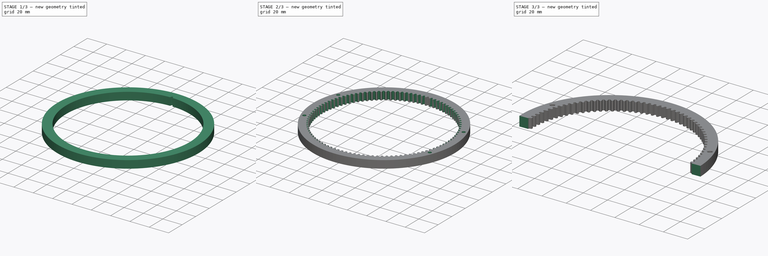
[diagram: build sequence overview — one tinted view per stage of 3, left to right]
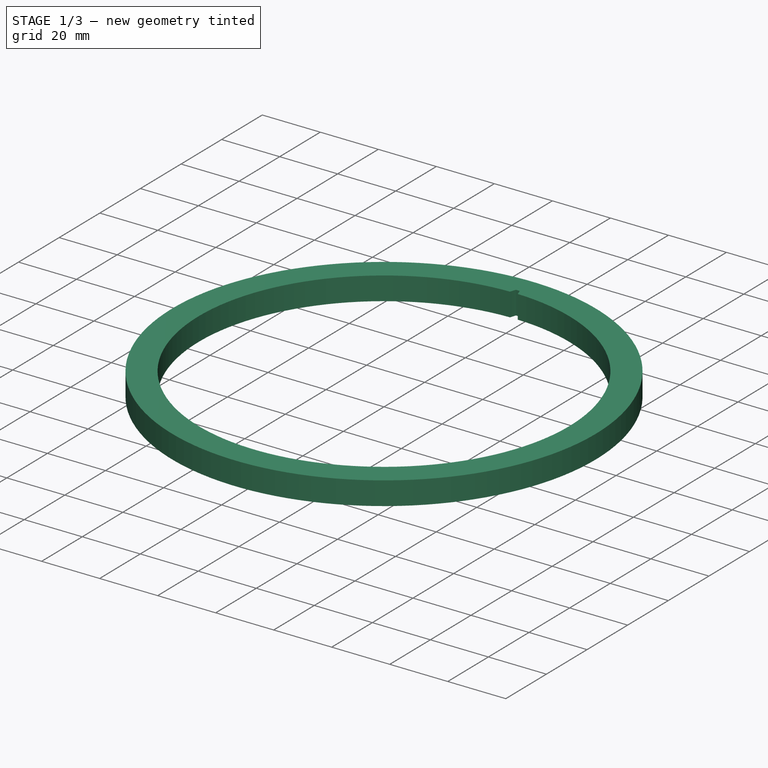
[diagram: stage 1 of 3 — iso view after this stage's code; geometry added in this stage tinted green]
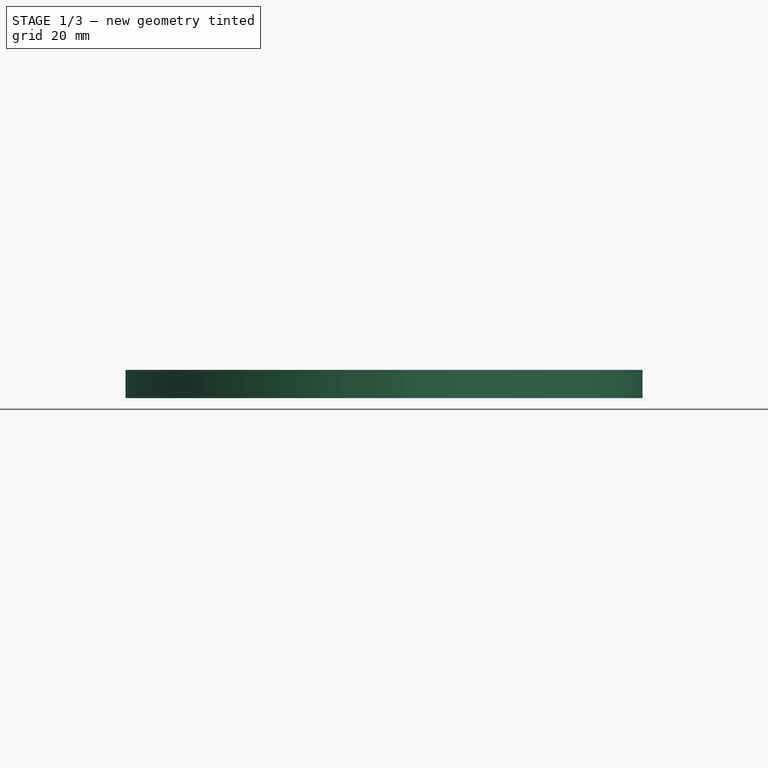
[diagram: stage 1 of 3 — front view after this stage's code; geometry added in this stage tinted green]
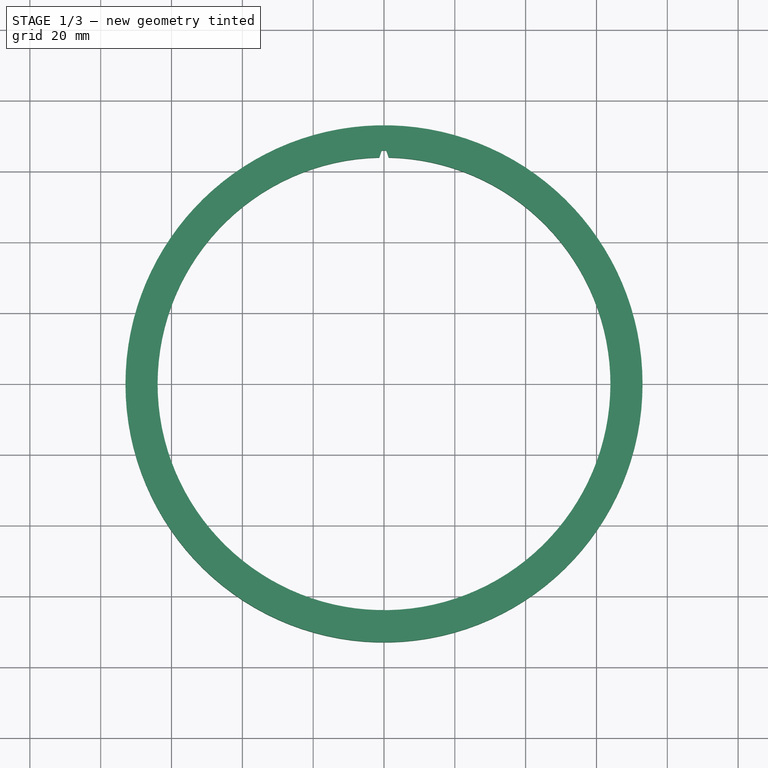
[diagram: stage 1 of 3 — top view after this stage's code; geometry added in this stage tinted green]
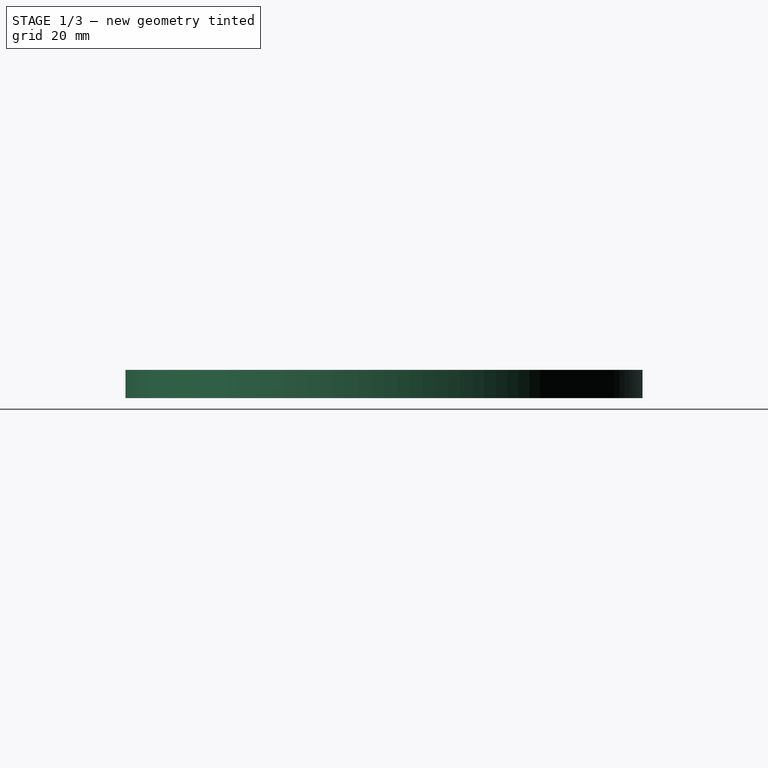
[diagram: stage 1 of 3 — right view after this stage's code; geometry added in this stage tinted green]
FCSTD DOCUMENT  (FreeCAD 0.15R4671 (Git))
Label: outer_gear
License: All rights reserved
LicenseURL: http://en.wikipedia.org/wiki/All_rights_reserved
objects: Sketcher::SketchObject×4, PartDesign::Pocket×3, PartDesign::PolarPattern×2, PartDesign::Pad×1, PartDesign::Chamfer×1
note: 15 computed .brp shape members not serialized (recipe doc carries the construction recipe); baked Part::Feature solids carry a one-line shape summary decoded from their .brp

FEATURE [Sketcher::SketchObject] Sketch001
  sketch-geometry (2):
    g0: Circle CenterX=0 CenterY=0 CenterZ=0 NormalX=0 NormalY=0 NormalZ=1 Radius=63.932
    g1: Circle CenterX=0 CenterY=0 CenterZ=0 NormalX=0 NormalY=0 NormalZ=1 Radius=73
  constraints (4):
    c: Coincident(g0,g-1)
    c: Radius(g0) = 63.932
    c: Coincident(g1,g-1)
    c: Radius(g1) = 73
FEATURE [PartDesign::Pad] Pad
  Length = 8
  Length2 = 100
  Sketch = -> Sketch001
  Type = 0
FEATURE [Sketcher::SketchObject] Sketch
  Placement = pos=(0,0,8) rot=(0,0,1;0rad)
  Support = -> Pad [Face4]
  sketch-geometry (8):
    g0: LineSegment [constr] StartX=0 StartY=0 StartZ=0 EndX=0 EndY=65.8918 EndZ=0
    g1: Circle [constr] CenterX=0 CenterY=0 CenterZ=0 NormalX=0 NormalY=0 NormalZ=1 Radius=63.932
    g2: LineSegment StartX=-0.641475 StartY=65.8918 StartZ=0 EndX=0.641475 EndY=65.8918 EndZ=0
    g3: ArcOfCircle CenterX=20.9902 CenterY=57.2713 CenterZ=0 NormalX=0 NormalY=0 NormalZ=1 Radius=23.2861 StartAngle=2.76237 EndAngle=2.85212
    g4: ArcOfCircle CenterX=-20.9902 CenterY=57.2713 CenterZ=0 NormalX=0 NormalY=0 NormalZ=1 Radius=23.2861 StartAngle=0.289471 EndAngle=0.379222
    g5: LineSegment [constr] StartX=-1.32706 StartY=63.9182 StartZ=0 EndX=1.32706 EndY=63.9182 EndZ=0
    g6: ArcOfCircle CenterX=0 CenterY=63.523 CenterZ=0 NormalX=0 NormalY=0 NormalZ=1 Radius=1.38467 StartAngle=2.85213 EndAngle=6.57265
    g7: LineSegment [constr] StartX=-1.32706 StartY=63.9182 StartZ=0 EndX=0.641475 EndY=65.8918 EndZ=0
  constraints (22):
    c: Coincident(g1,g0)
    c: Radius(g1) = 63.932
    c: Symmetric(g2,g2,g0)
    c: PointOnObject(g0,g2)
    c: Distance(g2) = 1.28295
    c: Coincident(g3,g2)
    c: PointOnObject(g3,g1)
    c: Coincident(g4,g2)
    c: Symmetric(g3,g4,g0)
    c: Equal(g4,g3)
    c: Coincident(g5,g3)
    c: Coincident(g5,g4)
    c: Distance(g5) = 2.65412
    c: Coincident(g6,g3)
    c: Coincident(g6,g4)
    c: Tangent(g3,g6)
    c: Radius(g3) = 23.2861
    c: Coincident(g7,g3)
    c: Coincident(g7,g2)
    c: Distance(g7) = 2.78747
    c: Vertical(g0)
    c: Coincident(g-1,g0)
FEATURE [PartDesign::Pocket] Pocket
  Length = 5
  Sketch = -> Sketch
  Type = 1
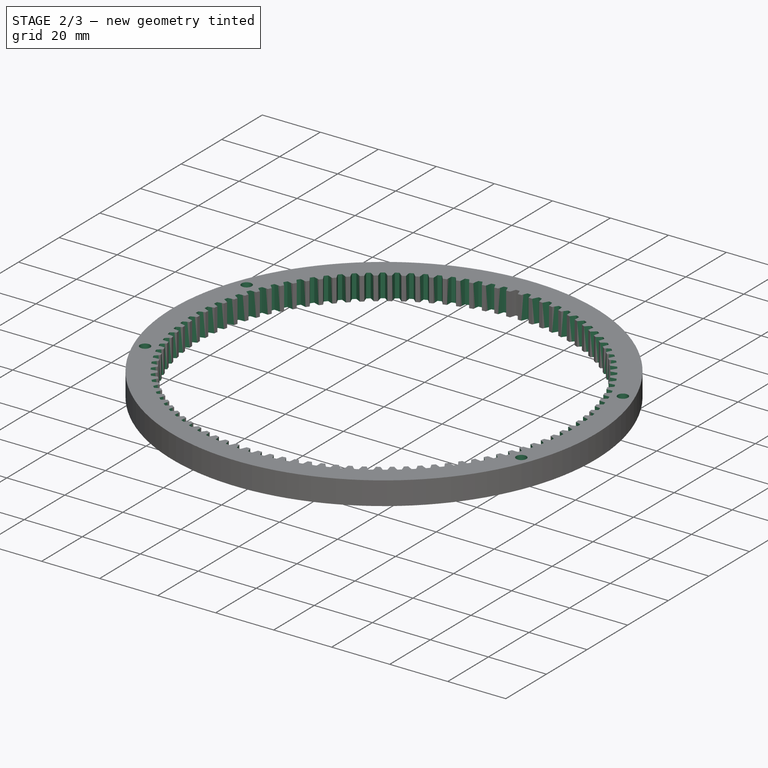
[diagram: stage 2 of 3 — iso view after this stage's code; geometry added in this stage tinted green]
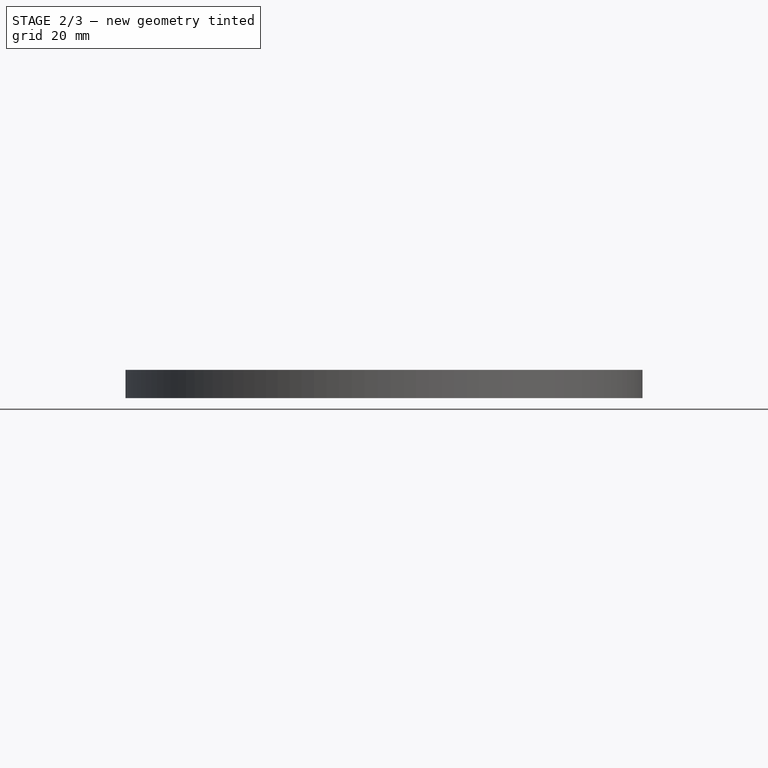
[diagram: stage 2 of 3 — front view after this stage's code; geometry added in this stage tinted green]
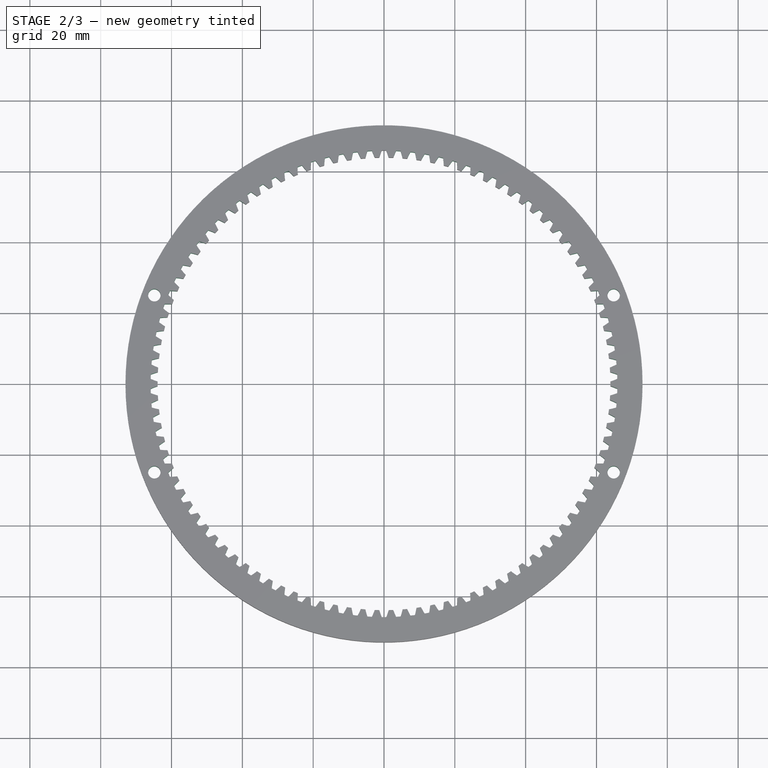
[diagram: stage 2 of 3 — top view after this stage's code; geometry added in this stage tinted green]
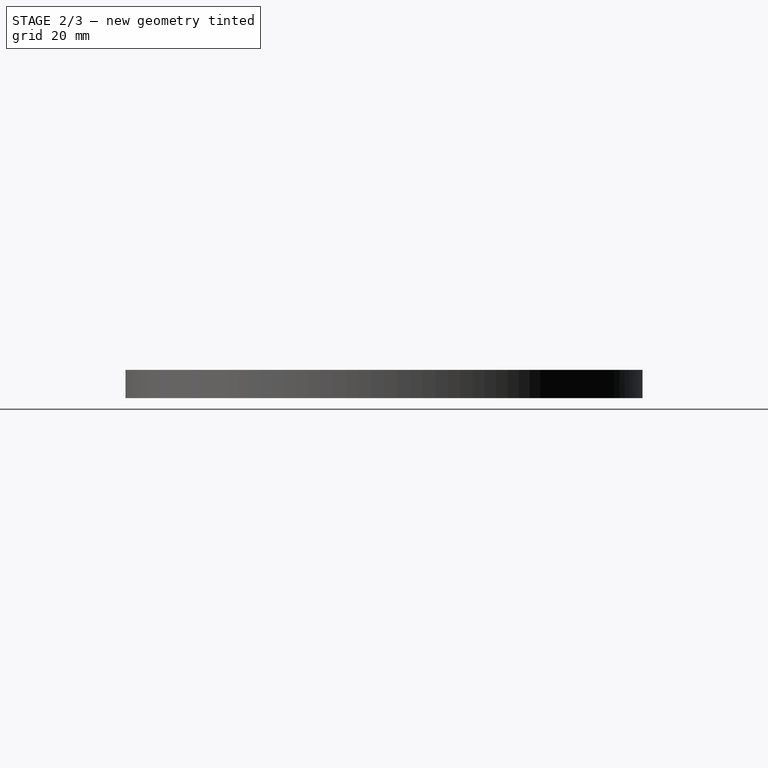
[diagram: stage 2 of 3 — right view after this stage's code; geometry added in this stage tinted green]
FEATURE [PartDesign::PolarPattern] PolarPattern
  Angle = 360
  Axis = -> Sketch [N_Axis]
  Occurrences = 102
  Originals = -> [Pocket]
FEATURE [Sketcher::SketchObject] Sketch002
  Placement = pos=(0,0,8) rot=(0,0,1;0rad)
  Support = -> PolarPattern [Face3]
  sketch-geometry (4):
    g0: Circle [constr] CenterX=0 CenterY=0 CenterZ=0 NormalX=0 NormalY=0 NormalZ=1 Radius=69.5
    g1: Circle CenterX=64.8479 CenterY=25 CenterZ=0 NormalX=0 NormalY=0 NormalZ=1 Radius=1.75
    g2: LineSegment [constr] StartX=-82.5245 StartY=25 StartZ=0 EndX=82.5245 EndY=25 EndZ=0
    g3: Circle CenterX=-64.8479 CenterY=25 CenterZ=0 NormalX=0 NormalY=0 NormalZ=1 Radius=1.75
  constraints (12):
    c: Coincident(g0,g-1)
    c: Radius(g0) = 69.5
    c: PointOnObject(g1,g0)
    c: Radius(g1) = 1.75
    c: Horizontal(g2)
    c: DistanceY(g2) = 25
    c: Symmetric(g2,g2,g-2)
    c: Distance(g2) = 165.049
    c: PointOnObject(g1,g2)
    c: PointOnObject(g3,g2)
    c: PointOnObject(g3,g0)
    c: Equal(g3,g1)
FEATURE [PartDesign::Pocket] Pocket001
  Length = 5
  Sketch = -> Sketch002
  Type = 1
FEATURE [PartDesign::PolarPattern] PolarPattern001
  Angle = 360
  Axis = -> Sketch002 [N_Axis]
  Occurrences = 2
  Originals = -> [Pocket001]
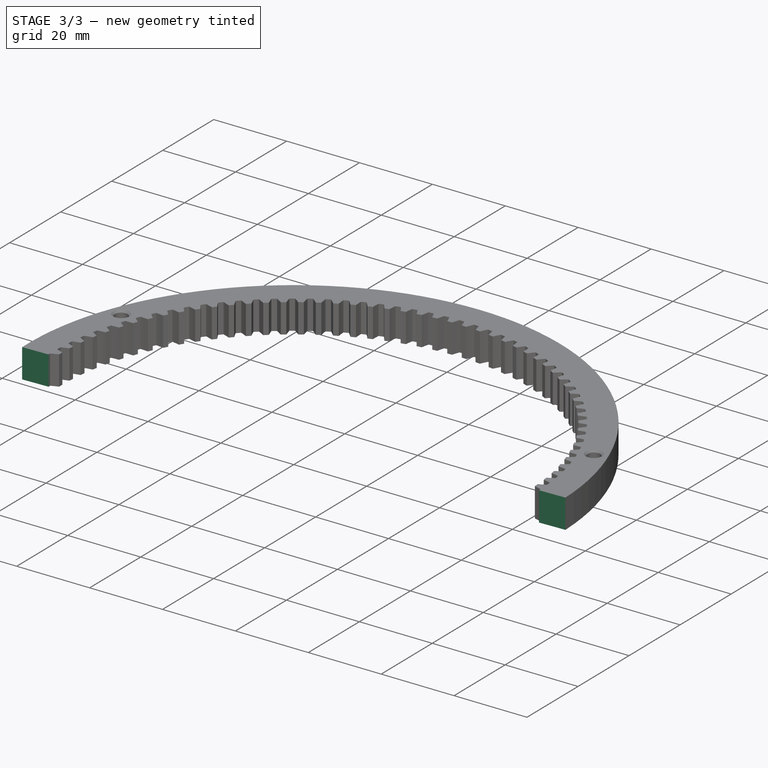
[diagram: stage 3 of 3 — iso view after this stage's code; geometry added in this stage tinted green]
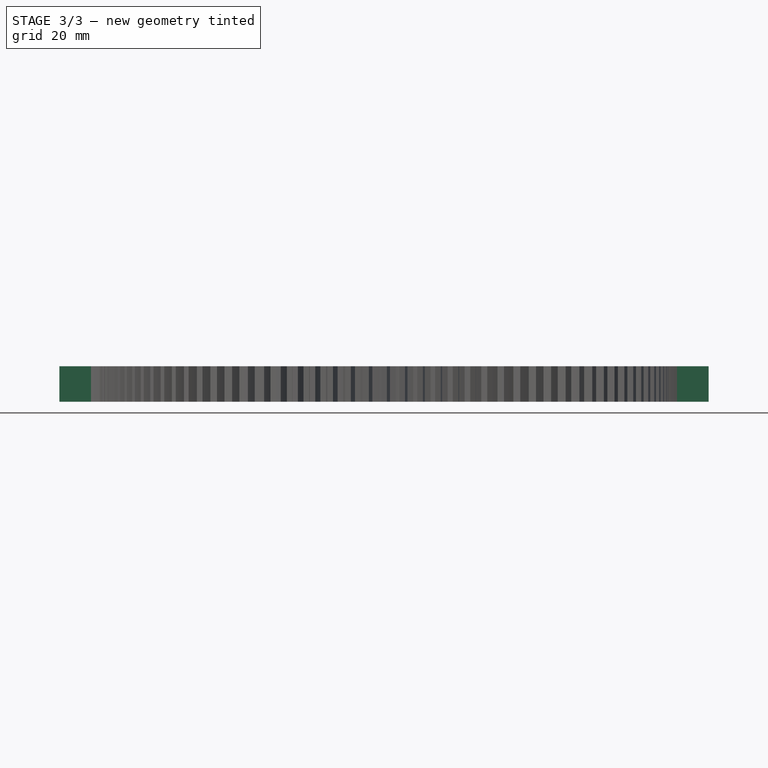
[diagram: stage 3 of 3 — front view after this stage's code; geometry added in this stage tinted green]
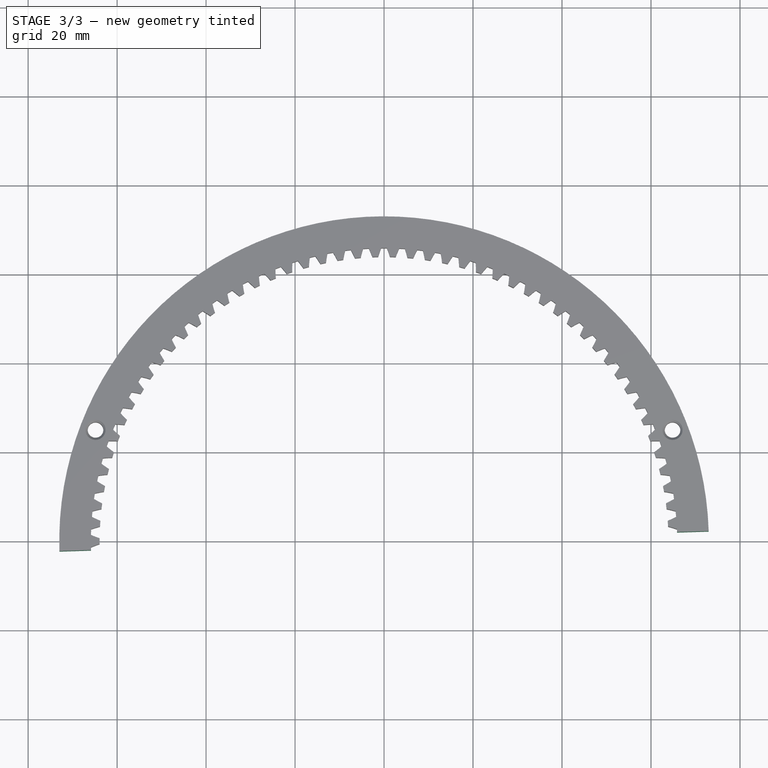
[diagram: stage 3 of 3 — top view after this stage's code; geometry added in this stage tinted green]
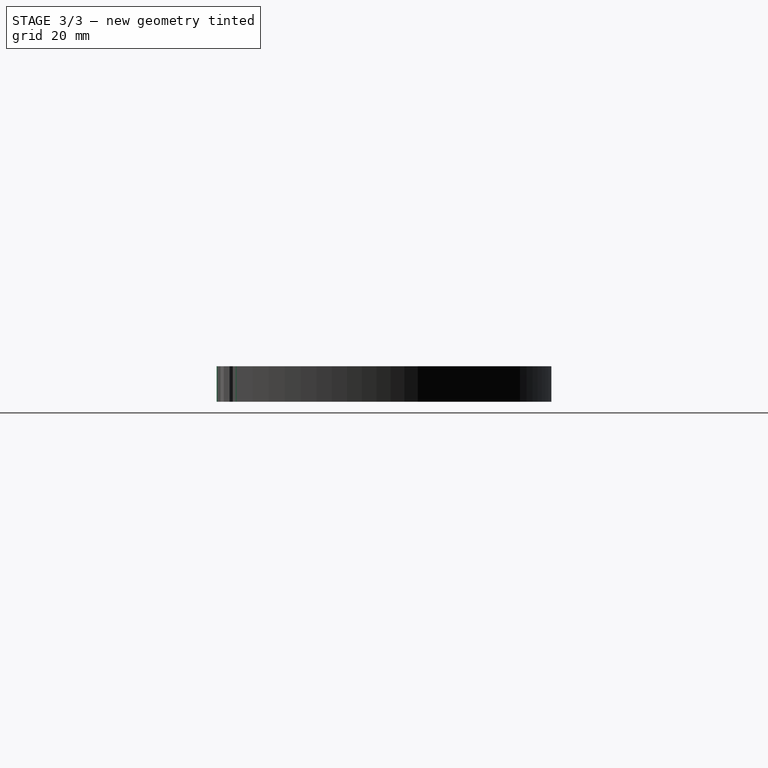
[diagram: stage 3 of 3 — right view after this stage's code; geometry added in this stage tinted green]
FEATURE [PartDesign::Chamfer] Chamfer
  Base = -> PolarPattern001 [Edge826,Edge829,Edge827,Edge828]
  Size = 0.5
FEATURE [Sketcher::SketchObject] Sketch003
  Placement = pos=(0,0,8) rot=(0,0,1;0rad)
  Support = -> Chamfer [Face1]
  sketch-geometry (5):
    g0: LineSegment StartX=0 StartY=0 StartZ=0 EndX=100.172 EndY=3.08628 EndZ=0
    g1: LineSegment [constr] StartX=0 StartY=0 StartZ=0 EndX=1.03179 EndY=-33.4893 EndZ=0
    g2: ArcOfCircle CenterX=0 CenterY=0 CenterZ=0 NormalX=0 NormalY=0 NormalZ=1 Radius=100.22 StartAngle=3.17239 EndAngle=6.31399
    g3: GeomPoint [constr] X=-100.172 Y=-3.08628 Z=0
    g4: LineSegment StartX=-100.172 StartY=-3.08628 StartZ=0 EndX=0 EndY=0 EndZ=0
  constraints (12):
    c: Coincident(g0,g-1)
    c: Angle(g-1,g0) = 0.0307999
    c: Distance(g1) = 33.5052
    c: Perpendicular(g1,g0)
    c: Coincident(g1,g-1)
    c: Coincident(g2,g-1)
    c: Coincident(g2,g0)
    c: Symmetric(g3,g0,g1)
    c: Coincident(g2,g3)
    c: Coincident(g4,g2)
    c: Coincident(g4,g-1)
    c: Distance(g4) = 100.22
FEATURE [PartDesign::Pocket] Pocket002
  Length = 5
  Sketch = -> Sketch003
  Type = 1
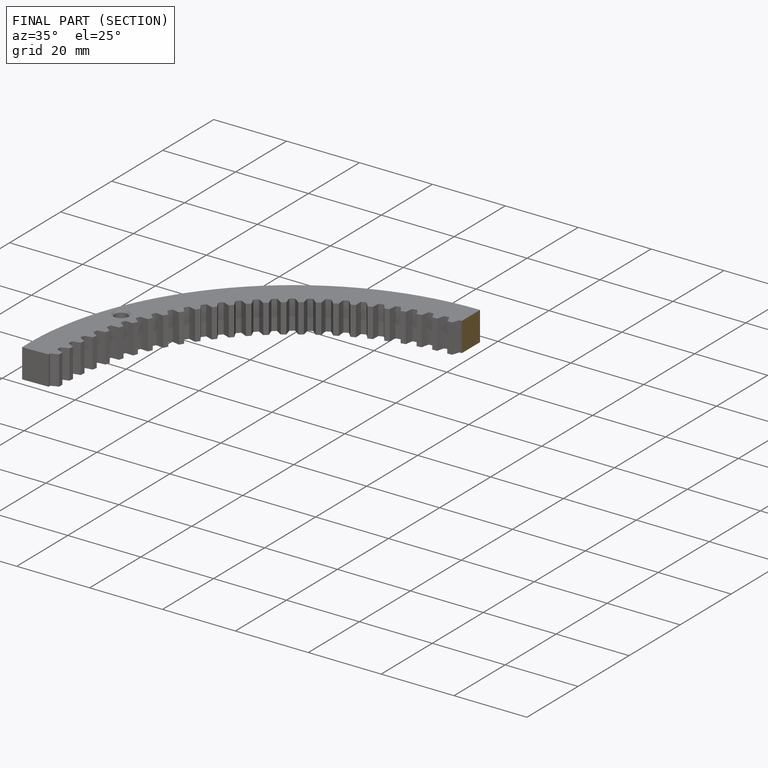
[diagram: finished part — half-section view (interior)]
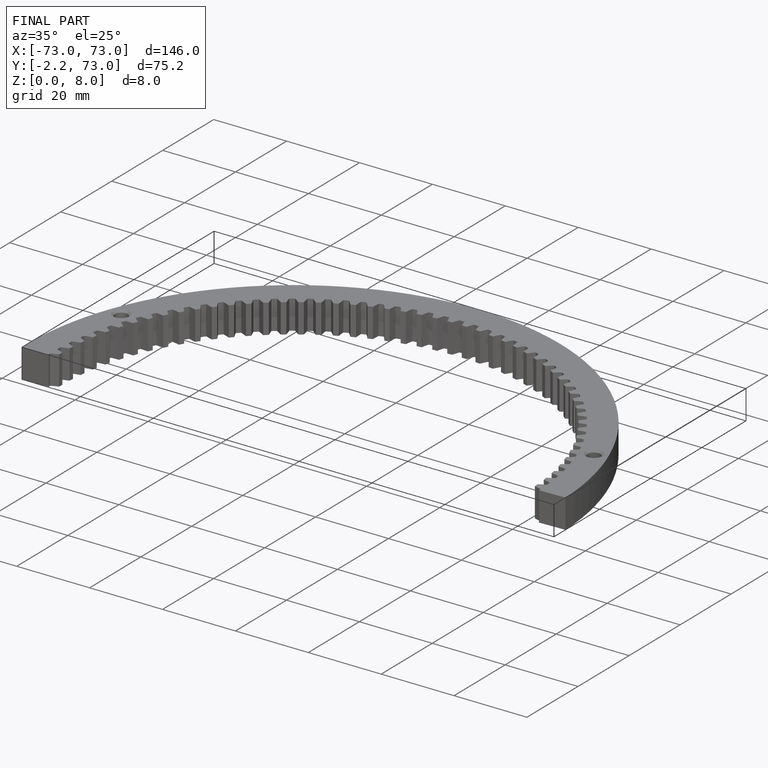
[diagram: finished part — iso view with bounding-box wireframe]
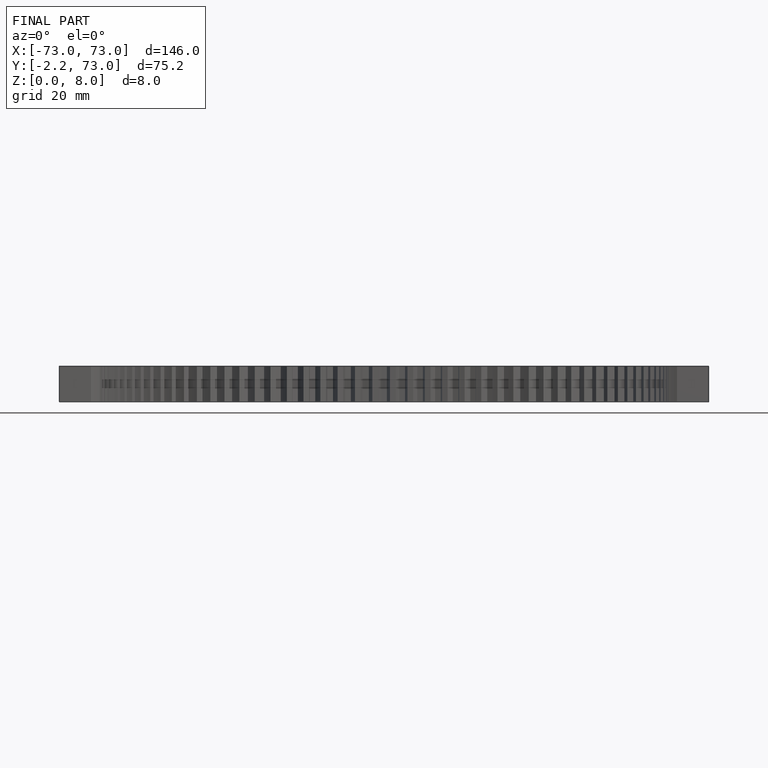
[diagram: finished part — front view with bounding-box wireframe]
